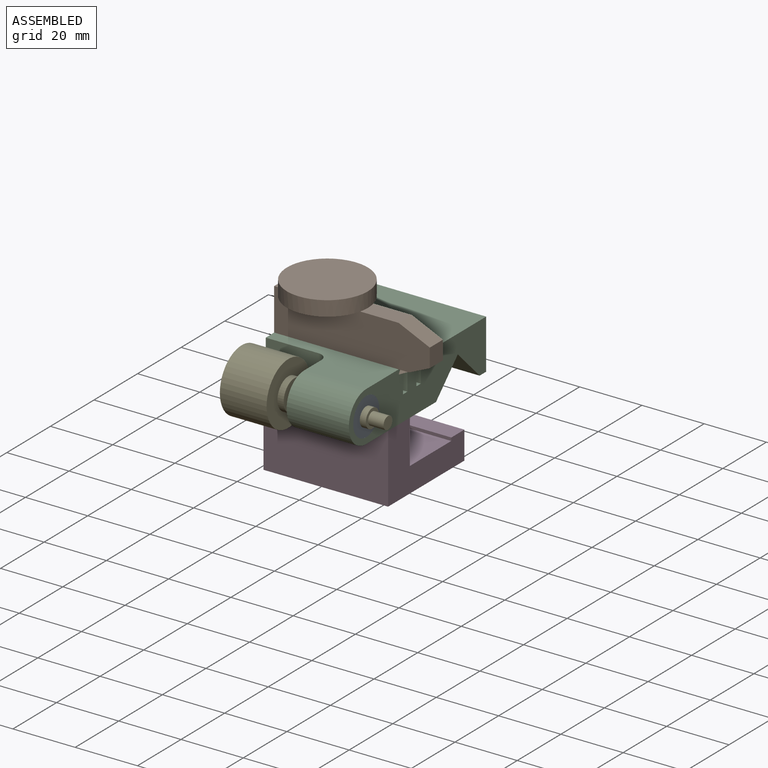
[diagram: assembled view]
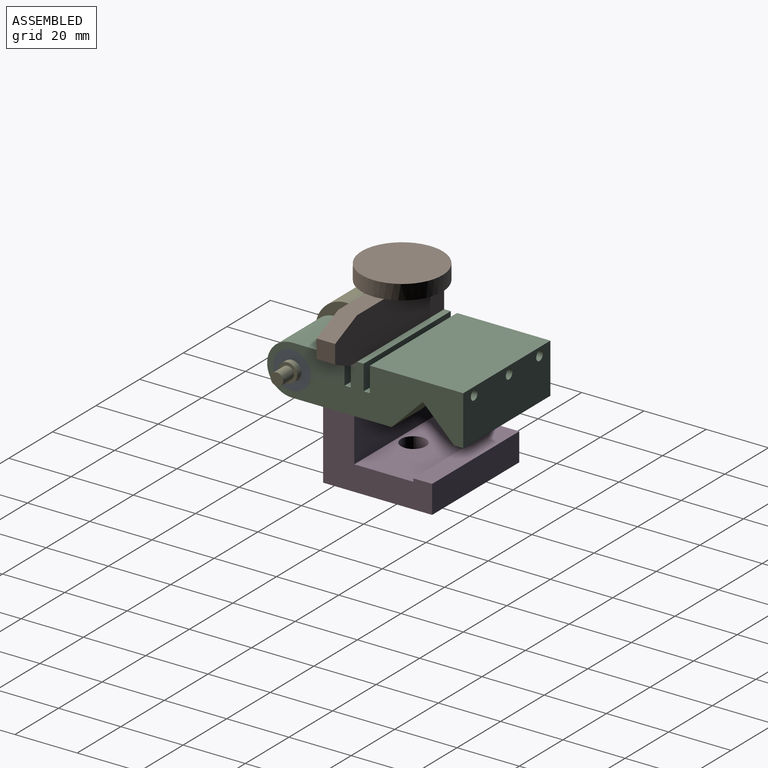
[diagram: assembled view, second angle]
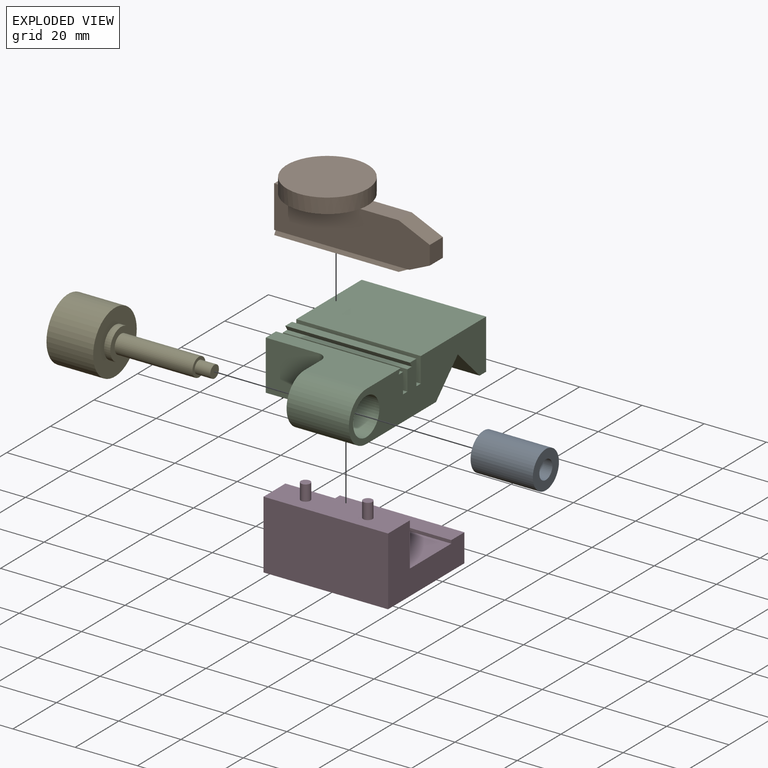
[diagram: exploded view]
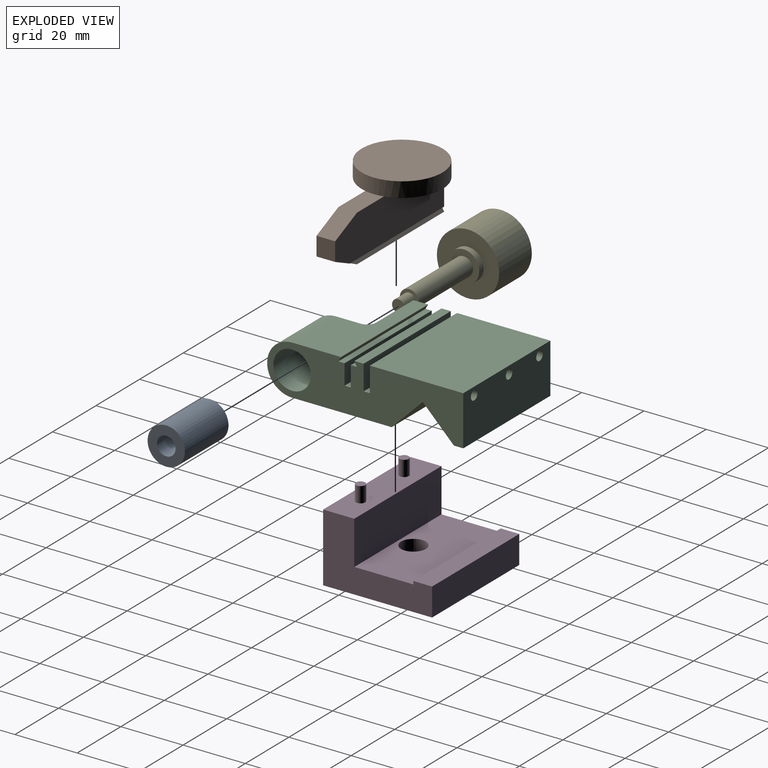
[diagram: exploded view, second angle]
ASSEMBLY  parts=5 mates=4
PART A: 4 faces, bbox 20x12x12 mm
  f0: cylinder r=3mm len=20mm, axis (-1,0,0), area 377mm2, adj f2,f3
  f1: cylinder r=6mm len=20mm, axis (-1,0,0), area 754mm2, adj f2,f3
  f2: plane 12x12mm, normal (1,0,0), area 84.8mm2, adj f0,f1
  f3: plane 12x12mm, normal (-1,0,0), area 84.8mm2, adj f0,f1
PART B: 17 faces, bbox 50x26x19.8 mm
  f0: plane 6x2.35mm, normal (0,0,1), area 12.7mm2, adj f1,f7,f10,f14
  f1: plane 50x13.5mm, normal (0,-1,0), area 642.5mm2, adj f0,f2,f8,f9,f10,f11,f12,f16
  f2: plane 6x6mm, normal (1,0,0), area 36mm2, adj f1,f7,f11,f12
  f3: plane 43.33x1.5mm, normal (0,-0.87,0.5), area 72.2mm2, adj f4,f9,f10,f11
  f4: plane 40x6mm, normal (0,0,-1), area 240mm2, adj f3,f5,f10,f11
  f5: plane 43.33x1.5mm, normal (0,0.87,0.5), area 72.2mm2, adj f4,f6,f10,f11
  f6: plane 43.33x0.87mm, normal (0,0,-1), area 37.5mm2, adj f5,f7,f10,f11
  f7: plane 50x13.5mm, normal (0,1,0), area 642.5mm2, adj f0,f2,f6,f8,f10,f11,f12,f13
  f8: plane 12.35x6mm, normal (0,0,1), area 72.7mm2, adj f1,f7,f12,f14
  f9: plane 43.33x0.87mm, normal (0,0,-1), area 37.5mm2, adj f1,f3,f10,f11
  f10: plane 15x6mm, normal (-1,0,0), area 88.7mm2, adj f0,f1,f3,f4,f5,f6,f7,f9
  f11: plane 10x6mm, normal (0.41,0,-0.91), area 62.6mm2, adj f1,f2,f3,f4,f5,f6,f7,f9
  f12: plane 10x6mm, normal (0.41,0,0.91), area 65.8mm2, adj f1,f2,f7,f8
  f13: plane 25.3x10mm, normal (0,0,-1), area 188.2mm2, adj f7,f14
  f14: cylinder r=13mm len=26mm, axis (0,0,-1), area 392.1mm2, adj f0,f8,f13,f15,f16
  f15: plane 26x26mm, normal (0,0,1), area 530.9mm2, adj f14
  f16: plane 25.3x10mm, normal (0,0,-1), area 188.2mm2, adj f1,f14
PART C: 37 faces, bbox 40x63x16 mm
  f0: plane 40x15.73mm, normal (0,0,1), area 411.2mm2, adj f15,f16,f20,f21,f28,f29,f30
  f1: plane 40x32mm, normal (0,0,-1), area 1028.2mm2, adj f16,f17,f20,f21,f28,f29,f30,f31
  f2: plane 40x3mm, normal (0,0,-1), area 120mm2, adj f3,f18,f20,f21
  f3: plane 40x16mm, normal (0,1,0), area 618.8mm2, adj f2,f4,f20,f21,f22,f24,f26
  f4: plane 40x30mm, normal (0,0,1), area 1200mm2, adj f3,f5,f20,f21
  f5: plane 40x8mm, normal (0,-1,0), area 320mm2, adj f4,f6,f20,f21
  f6: plane 40x2mm, normal (0,0,1), area 80mm2, adj f5,f7,f20,f21
  f7: plane 40x8mm, normal (0,1,0), area 320mm2, adj f6,f8,f20,f21
  f8: plane 40x3mm, normal (0,0,1), area 120mm2, adj f7,f9,f20,f21
  f9: plane 40x1.5mm, normal (0,-0.87,-0.5), area 69.3mm2, adj f8,f10,f20,f21
  f10: plane 40x2mm, normal (0,0,1), area 80mm2, adj f9,f11,f20,f21
  f11: plane 40x6.5mm, normal (0,-1,0), area 260mm2, adj f10,f12,f20,f21
  f12: plane 40x2mm, normal (0,0,1), area 80mm2, adj f11,f13,f20,f21
  f13: plane 40x6.5mm, normal (0,1,0), area 260mm2, adj f12,f14,f20,f21
  f14: plane 40x2mm, normal (0,0,1), area 80mm2, adj f13,f15,f20,f21
  f15: plane 40x1.5mm, normal (0,0.87,-0.5), area 69.3mm2, adj f0,f14,f20,f21
  f16: cylinder r=8mm len=20mm, axis (-1,0,0), area 502.7mm2, adj f0,f1,f20,f28
  f17: plane 40x10mm, normal (0,0.71,-0.71), area 565.7mm2, adj f1,f18,f20,f21
  f18: plane 40x10mm, normal (0,-0.71,-0.71), area 565.7mm2, adj f2,f17,f20,f21
  f19: cylinder r=6mm len=20mm, axis (-1,0,0), area 754mm2, adj f20,f28
  f20: plane 63x16mm, normal (1,0,0), area 730.7mm2, adj f0,f1,f2,f3,f4,f5,f6,f7
  f21: plane 44x16mm, normal (-1,0,0), area 567.3mm2, adj f0,f1,f2,f3,f4,f5,f6,f7
  f22: cylinder r=1.5mm len=25mm, axis (0,1,0), area 235.6mm2, adj f3,f23
  f23: plane 3x3mm, normal (0,1,0), area 7.1mm2, adj f22
  f24: cylinder r=1.5mm len=25mm, axis (0,1,0), area 235.6mm2, adj f3,f25
  f25: plane 3x3mm, normal (0,1,0), area 7.1mm2, adj f24
  f26: cylinder r=1.5mm len=25mm, axis (0,1,0), area 235.6mm2, adj f3,f27
  f27: plane 3x3mm, normal (0,1,0), area 7.1mm2, adj f26
  f28: plane 16x16mm, normal (-1,0,0), area 115.4mm2, adj f0,f1,f16,f19,f29
  f29: cylinder r=3mm len=16mm, axis (0,0,1), area 75.4mm2, adj f0,f1,f28,f30
  f30: plane 17x16mm, normal (0,-1,0), area 272mm2, adj f0,f1,f21,f29
  f31: cylinder r=1.5mm len=6mm, axis (0,0,-1), area 56.5mm2, adj f1,f32
  f32: plane 3x3mm, normal (0,0,-1), area 7.1mm2, adj f31
  f33: cylinder r=1.5mm len=6mm, axis (0,0,-1), area 56.5mm2, adj f1,f34
  f34: plane 3x3mm, normal (0,0,-1), area 7.1mm2, adj f33
  f35: cylinder r=2.5mm len=6mm, axis (0,0,-1), area 94.2mm2, adj f1,f36
  f36: plane 5x5mm, normal (0,0,-1), area 19.6mm2, adj f35
PART D: 15 faces, bbox 40x35x27 mm
  f0: plane 40x19mm, normal (0,0,1), area 709.7mm2, adj f1,f3,f6,f8,f14
  f1: plane 35x22mm, normal (-1,0,0), area 426mm2, adj f0,f2,f4,f5,f6,f7,f8,f9
  f2: plane 40x22mm, normal (0,-1,0), area 880mm2, adj f1,f3,f5,f7
  f3: plane 35x22mm, normal (1,0,0), area 426mm2, adj f0,f2,f4,f5,f6,f7,f8,f9
  f4: plane 40x9mm, normal (0,1,0), area 360mm2, adj f1,f3,f5,f9
  f5: plane 40x35mm, normal (0,0,-1), area 1349.7mm2, adj f1,f2,f3,f4,f14
  f6: plane 40x14mm, normal (0,1,0), area 560mm2, adj f0,f1,f3,f7
  f7: plane 40x10mm, normal (0,0,1), area 385.9mm2, adj f1,f2,f3,f6,f10,f12
  f8: plane 40x1mm, normal (0,-1,0), area 40mm2, adj f0,f1,f3,f9
  f9: plane 40x6mm, normal (0,0,1), area 240mm2, adj f1,f3,f4,f8
  f10: cylinder r=1.5mm len=5mm, axis (0,0,-1), area 47.1mm2, adj f7,f11
  f11: plane 3x3mm, normal (0,0,1), area 7.1mm2, adj f10
  f12: cylinder r=1.5mm len=5mm, axis (0,0,-1), area 47.1mm2, adj f7,f13
  f13: plane 3x3mm, normal (0,0,1), area 7.1mm2, adj f12
  f14: cylinder r=4mm len=8mm, axis (0,0,1), area 201.1mm2, adj f0,f5
PART E: 9 faces, bbox 47x20x20 mm
  f0: plane 4x4mm, normal (1,0,0), area 12.6mm2, adj f1
  f1: cylinder r=2mm len=5mm, axis (-1,0,0), area 62.8mm2, adj f0,f2
  f2: plane 6x6mm, normal (1,0,0), area 15.7mm2, adj f1,f3
  f3: cylinder r=3mm len=25mm, axis (-1,0,0), area 471.2mm2, adj f2,f4
  f4: plane 10x10mm, normal (1,0,0), area 50.3mm2, adj f3,f5
  f5: cylinder r=5mm len=10mm, axis (-1,0,0), area 62.8mm2, adj f4,f6
  f6: plane 20x20mm, normal (1,0,0), area 235.6mm2, adj f5,f7
  f7: cylinder r=10mm len=20mm, axis (-1,0,0), area 942.5mm2, adj f6,f8
  f8: plane 20x20mm, normal (-1,0,0), area 314.2mm2, adj f7
PLACE A t=(20,-55,8)mm
PLACE B t=(0,-40.13,14.5)mm
PLACE C at identity
PLACE D t=(0,-45,-22)mm
PLACE E rot(axis=(-1,0,0),167.1deg) t=(46.96,-55,8)mm
MATE cylindrical E.f1 <-> A.f1  axis (-1,0,0) through (29.46,-55,8)mm
MATE fastened A.f1 <-> C.f16  axis (-1,0,0) through (20,-55,8)mm
MATE fastened B.f4 <-> C.f14  axis (0,0,1) through (0,-40.13,14.5)mm
MATE fastened D.f12 <-> C.f31  axis (0,0,1) through (30,-40,0)mm
